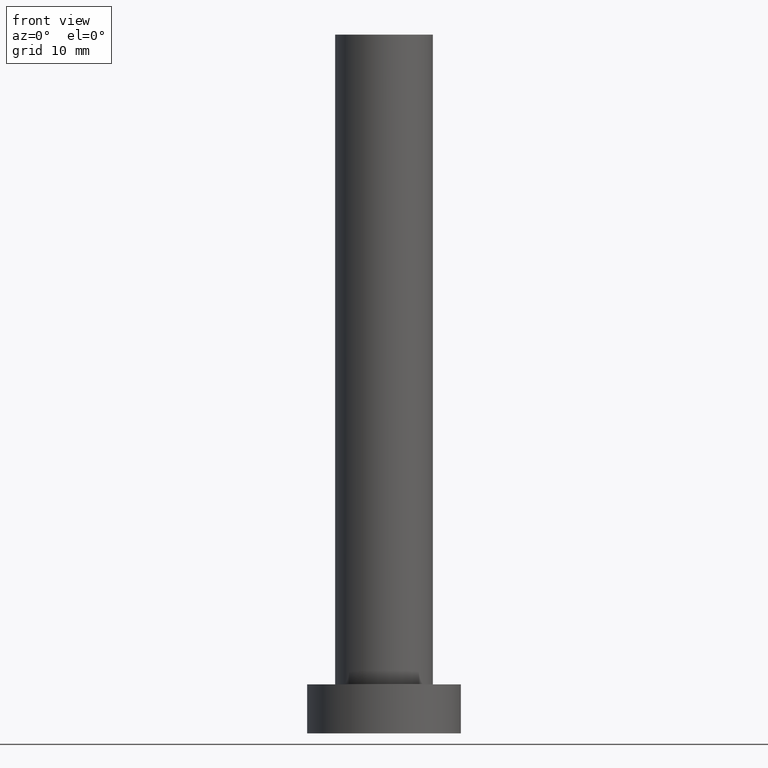
[diagram: clean part render]
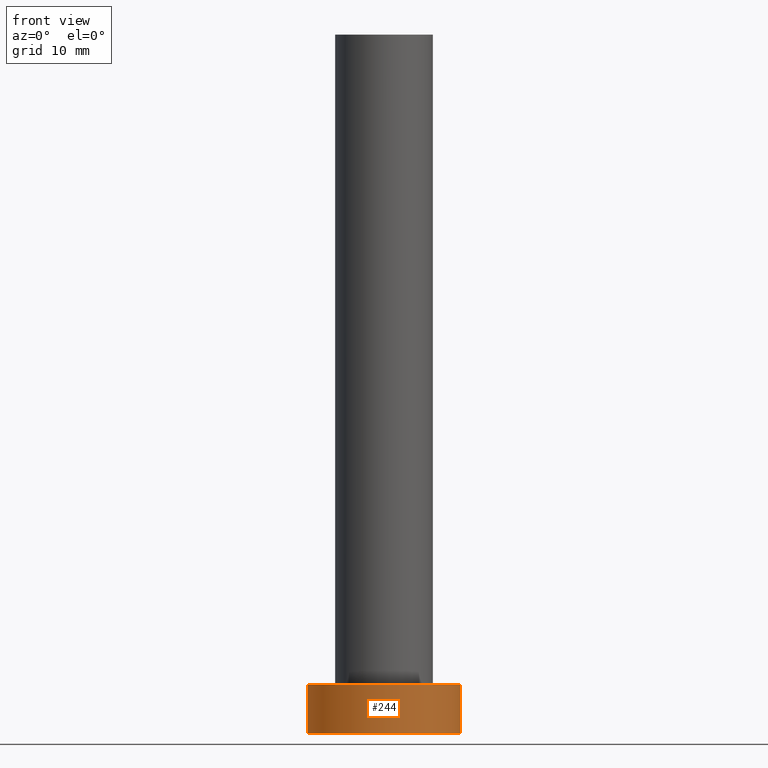
[diagram: same view with one face highlighted and labeled with its STEP entity id]
A machine part, front view. The second image highlights one B-rep face of the part: STEP entity #244.
In plain terms, the highlighted cylindrical surface (partial cylindrical patch) has radius 11 mm, axis along (-0, -0, -1).
Its self-contained STEP definition (entity closure, byte-faithful):
#1 = CARTESIAN_POINT ( 'NONE',  ( 11.00000000000000000, 1.347111479062088405E-15, 7.000000000000000000 ) ) ;
#5 = DIRECTION ( 'NONE',  ( 0.000000000000000000, 0.000000000000000000, 1.000000000000000000 ) ) ;
#12 = CIRCLE ( 'NONE', #115, 11.00000000000000000 ) ;
#16 = ORIENTED_EDGE ( 'NONE', *, *, #127, .F. ) ;
#22 = LINE ( 'NONE', #81, #226 ) ;
#27 = CARTESIAN_POINT ( 'NONE',  ( 0.000000000000000000, 0.000000000000000000, 7.000000000000000000 ) ) ;
#38 = CIRCLE ( 'NONE', #213, 11.00000000000000000 ) ;
#41 = DIRECTION ( 'NONE',  ( 1.000000000000000000, 0.000000000000000000, 0.000000000000000000 ) ) ;
#51 = VERTEX_POINT ( 'NONE', #175 ) ;
#58 = DIRECTION ( 'NONE',  ( -1.000000000000000000, 0.000000000000000000, 0.000000000000000000 ) ) ;
#69 = DIRECTION ( 'NONE',  ( 1.000000000000000000, 0.000000000000000000, 0.000000000000000000 ) ) ;
#70 = ORIENTED_EDGE ( 'NONE', *, *, #250, .T. ) ;
#75 = EDGE_CURVE ( 'NONE', #150, #51, #22, .T. ) ;
#81 = CARTESIAN_POINT ( 'NONE',  ( 11.00000000000000000, 1.347111479062088405E-15, 7.000000000000000000 ) ) ;
#88 = EDGE_LOOP ( 'NONE', ( #249, #16, #167, #70 ) ) ;
#99 = CARTESIAN_POINT ( 'NONE',  ( 0.000000000000000000, 0.000000000000000000, 7.000000000000000000 ) ) ;
#100 = CARTESIAN_POINT ( 'NONE',  ( 0.000000000000000000, 0.000000000000000000, 0.000000000000000000 ) ) ;
#115 = AXIS2_PLACEMENT_3D ( 'NONE', #100, #5, #41 ) ;
#127 = EDGE_CURVE ( 'NONE', #135, #150, #38, .T. ) ;
#134 = LINE ( 'NONE', #192, #219 ) ;
#135 = VERTEX_POINT ( 'NONE', #138 ) ;
#138 = CARTESIAN_POINT ( 'NONE',  ( -11.00000000000000000, 0.000000000000000000, 7.000000000000000000 ) ) ;
#139 = EDGE_CURVE ( 'NONE', #135, #209, #134, .T. ) ;
#141 = CARTESIAN_POINT ( 'NONE',  ( -11.00000000000000000, 0.000000000000000000, 0.000000000000000000 ) ) ;
#143 = DIRECTION ( 'NONE',  ( -0.000000000000000000, -0.000000000000000000, -1.000000000000000000 ) ) ;
#150 = VERTEX_POINT ( 'NONE', #1 ) ;
#160 = FACE_OUTER_BOUND ( 'NONE', #88, .T. ) ;
#166 = DIRECTION ( 'NONE',  ( -0.000000000000000000, -0.000000000000000000, -1.000000000000000000 ) ) ;
#167 = ORIENTED_EDGE ( 'NONE', *, *, #139, .T. ) ;
#175 = CARTESIAN_POINT ( 'NONE',  ( 11.00000000000000000, 1.347111479062088405E-15, 0.000000000000000000 ) ) ;
#186 = DIRECTION ( 'NONE',  ( -0.000000000000000000, -0.000000000000000000, -1.000000000000000000 ) ) ;
#192 = CARTESIAN_POINT ( 'NONE',  ( -11.00000000000000000, 0.000000000000000000, 7.000000000000000000 ) ) ;
#193 = CYLINDRICAL_SURFACE ( 'NONE', #208, 11.00000000000000000 ) ;
#208 = AXIS2_PLACEMENT_3D ( 'NONE', #99, #143, #58 ) ;
#209 = VERTEX_POINT ( 'NONE', #141 ) ;
#213 = AXIS2_PLACEMENT_3D ( 'NONE', #27, #229, #69 ) ;
#219 = VECTOR ( 'NONE', #186, 1000.000000000000000 ) ;
#226 = VECTOR ( 'NONE', #166, 1000.000000000000000 ) ;
#229 = DIRECTION ( 'NONE',  ( 0.000000000000000000, 0.000000000000000000, 1.000000000000000000 ) ) ;
#244 = ADVANCED_FACE ( 'NONE', ( #160 ), #193, .T. ) ;
#249 = ORIENTED_EDGE ( 'NONE', *, *, #75, .F. ) ;
#250 = EDGE_CURVE ( 'NONE', #209, #51, #12, .T. ) ;